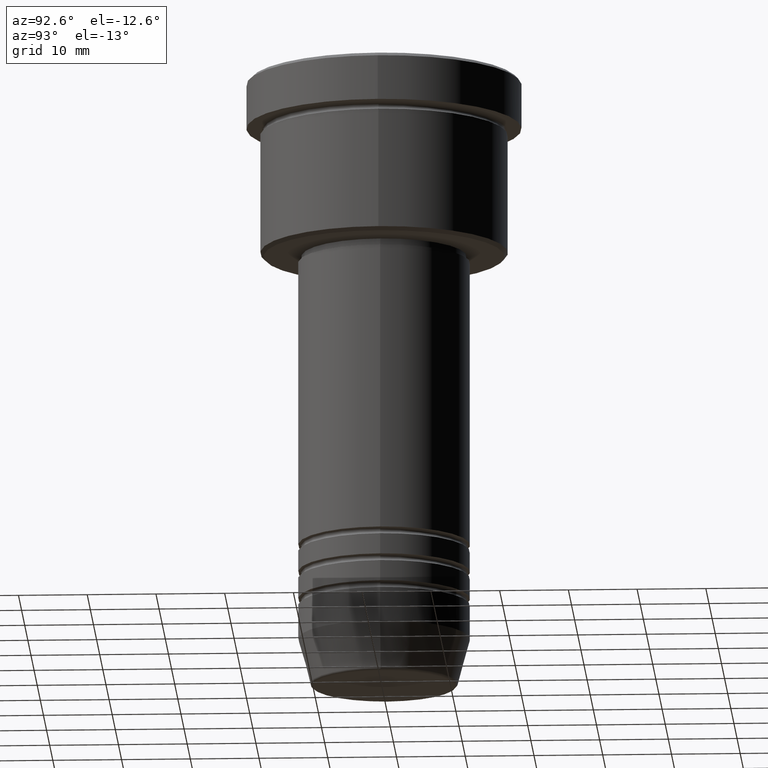
[diagram: clean part render]
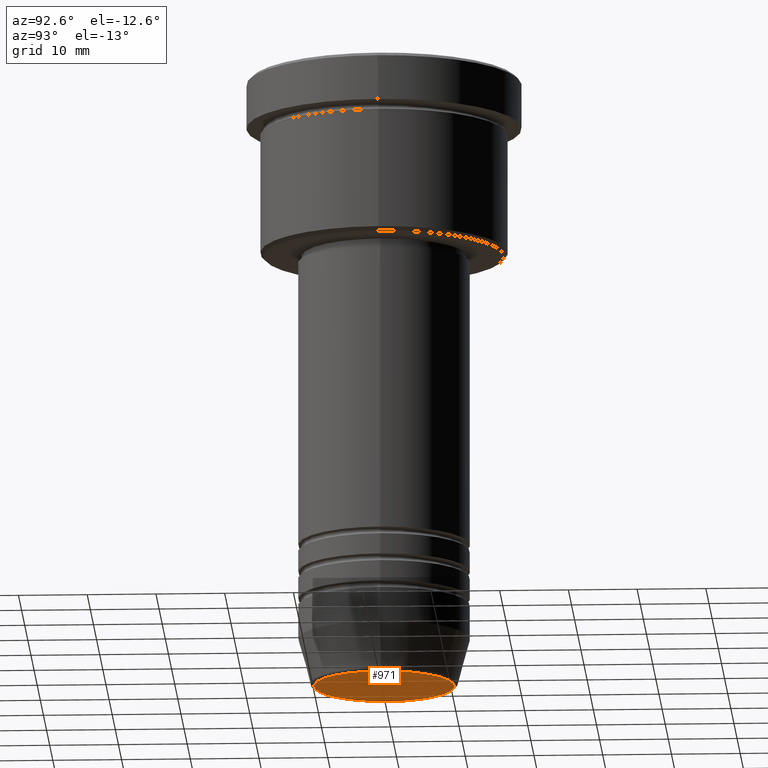
[diagram: same view with one face highlighted and labeled with its STEP entity id]
A machine part, auxiliary view. The second image highlights one B-rep face of the part: STEP entity #971.
In plain terms, the highlighted planar face has unit normal (0, -0, 1).
Its self-contained STEP definition (entity closure, byte-faithful):
#89 = AXIS2_PLACEMENT_3D ( 'NONE', #519, #349, #434 ) ;
#170 = EDGE_CURVE ( 'NONE', #987, #247, #708, .T. ) ;
#247 = VERTEX_POINT ( 'NONE', #586 ) ;
#299 = AXIS2_PLACEMENT_3D ( 'NONE', #304, #384, #481 ) ;
#304 = CARTESIAN_POINT ( 'NONE',  ( 0.000000000000000000, 0.000000000000000000, -90.00000000000000000 ) ) ;
#345 = ORIENTED_EDGE ( 'NONE', *, *, #170, .T. ) ;
#349 = DIRECTION ( 'NONE',  ( 0.000000000000000000, -0.000000000000000000, 1.000000000000000000 ) ) ;
#364 = DIRECTION ( 'NONE',  ( 0.000000000000000000, 0.000000000000000000, -1.000000000000000000 ) ) ;
#384 = DIRECTION ( 'NONE',  ( 0.000000000000000000, 0.000000000000000000, -1.000000000000000000 ) ) ;
#434 = DIRECTION ( 'NONE',  ( 1.000000000000000000, 0.000000000000000000, 0.000000000000000000 ) ) ;
#474 = AXIS2_PLACEMENT_3D ( 'NONE', #1172, #364, #1151 ) ;
#481 = DIRECTION ( 'NONE',  ( 1.000000000000000000, 0.000000000000000000, 0.000000000000000000 ) ) ;
#519 = CARTESIAN_POINT ( 'NONE',  ( 0.000000000000000000, 0.000000000000000000, -90.00000000000000000 ) ) ;
#586 = CARTESIAN_POINT ( 'NONE',  ( -10.24069215899265473, 1.283696036640841981E-15, -90.00000000000000000 ) ) ;
#627 = FACE_OUTER_BOUND ( 'NONE', #1090, .T. ) ;
#701 = CARTESIAN_POINT ( 'NONE',  ( 10.24069215899265473, 0.000000000000000000, -90.00000000000000000 ) ) ;
#708 = CIRCLE ( 'NONE', #299, 10.24069215899265473 ) ;
#725 = ORIENTED_EDGE ( 'NONE', *, *, #1057, .T. ) ;
#971 = ADVANCED_FACE ( 'NONE', ( #627 ), #1155, .F. ) ;
#987 = VERTEX_POINT ( 'NONE', #701 ) ;
#1057 = EDGE_CURVE ( 'NONE', #247, #987, #1113, .T. ) ;
#1090 = EDGE_LOOP ( 'NONE', ( #345, #725 ) ) ;
#1113 = CIRCLE ( 'NONE', #474, 10.24069215899265473 ) ;
#1151 = DIRECTION ( 'NONE',  ( 1.000000000000000000, 0.000000000000000000, 0.000000000000000000 ) ) ;
#1155 = PLANE ( 'NONE',  #89 ) ;
#1172 = CARTESIAN_POINT ( 'NONE',  ( 0.000000000000000000, 0.000000000000000000, -90.00000000000000000 ) ) ;